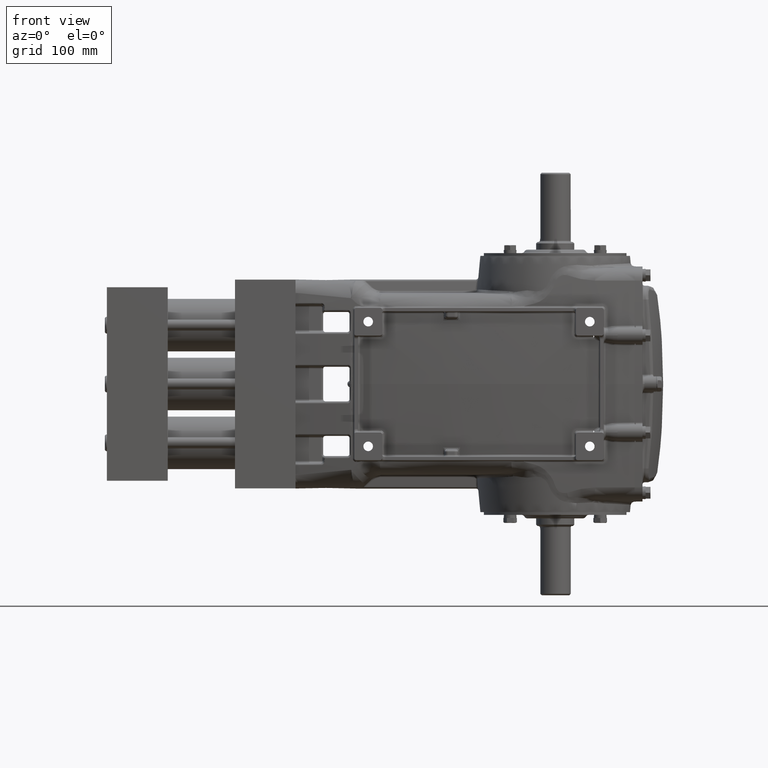
[diagram: clean part render]
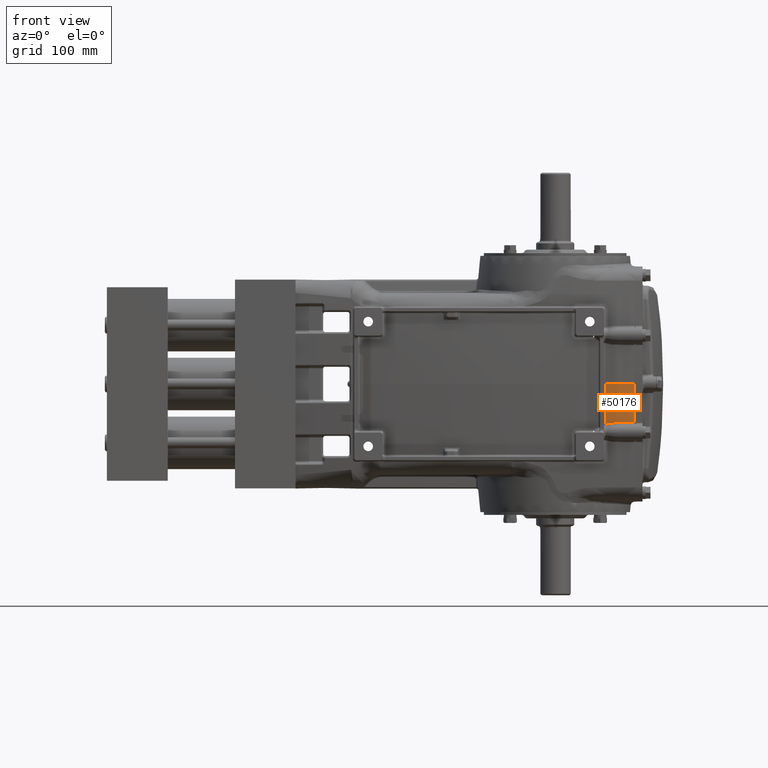
[diagram: same view with one face highlighted and labeled with its STEP entity id]
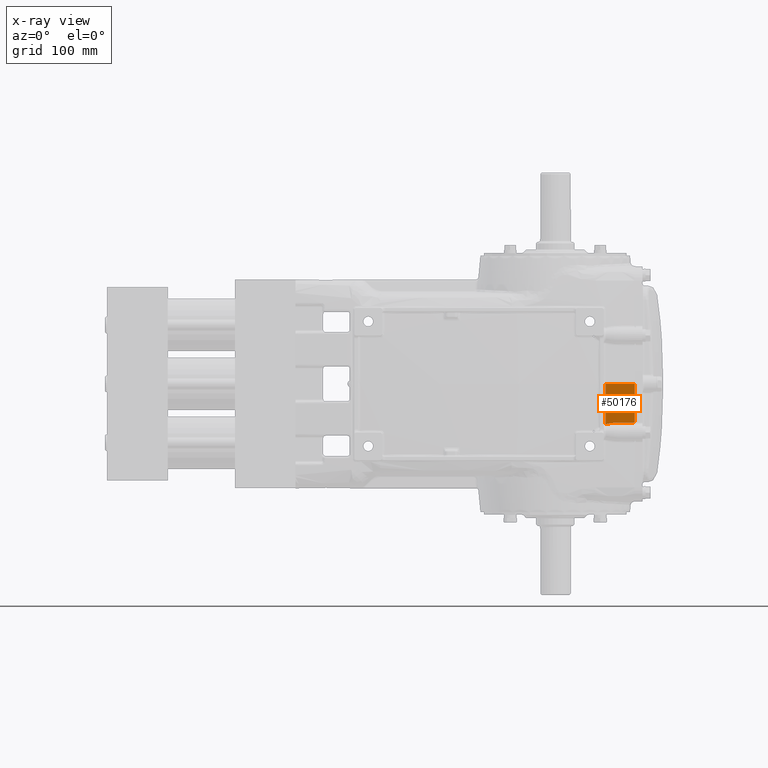
[diagram: x-ray of the same camera — body ghosted, the highlighted face saturated]
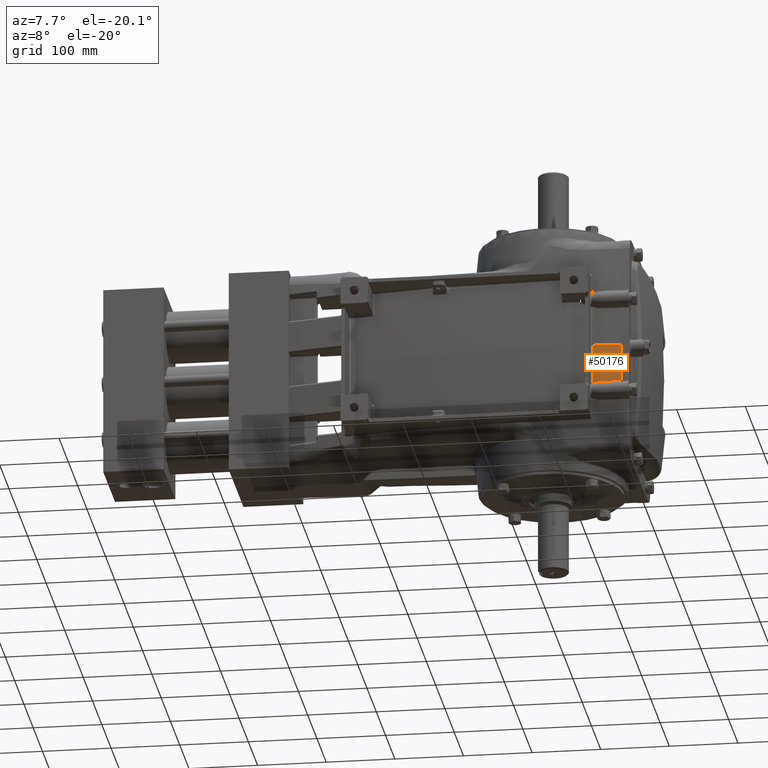
[diagram: same view with one face highlighted and labeled with its STEP entity id]
A machine part, front view. The second image highlights one B-rep face of the part: STEP entity #50176.
The next image is the same camera in x-ray: the body ghosted, the highlighted face saturated — about 0% of this face is hidden behind the body in this view.
A second angle (auxiliary view) of the same face is appended — the face is thin or edge-on in the first view.
In plain terms, the highlighted face is a freeform B-spline surface patch.
Its self-contained STEP definition (entity closure, byte-faithful):
#284 = CARTESIAN_POINT ( 'NONE',  ( -2.285265959175708961, -12.38061854647190074, -5.952186459334057860E-15 ) ) ;
#2207 = CARTESIAN_POINT ( 'NONE',  ( -21.64131179470609112, -10.09287612683603008, -10.04577710926004208 ) ) ;
#2479 = CARTESIAN_POINT ( 'NONE',  ( -2.349973212028928504, -12.34966437480546908, -2.184664243010236984 ) ) ;
#3240 = CARTESIAN_POINT ( 'NONE',  ( -3.337673267315954817, -12.38437238862432821, -2.195805740867309730 ) ) ;
#3458 = CARTESIAN_POINT ( 'NONE',  ( -2.220558706322492970, -11.83250516395756158, -8.780860917755495265 ) ) ;
#3766 = CARTESIAN_POINT ( 'NONE',  ( -21.64131179470613020, -10.35318565719905237, -8.030208900442749709 ) ) ;
#4071 = CARTESIAN_POINT ( 'NONE',  ( -2.349973212028926728, -12.33450132958514445, -2.708941850718743272 ) ) ;
#4381 = CARTESIAN_POINT ( 'NONE',  ( -2.155851453469257439, -12.16987518197086438, -5.413753015067796603 ) ) ;
#4577 = CARTESIAN_POINT ( 'NONE',  ( -3.008363892202449374, -12.37485469306717789, -2.192423589991714383 ) ) ;
#4686 = CARTESIAN_POINT ( 'NONE',  ( -21.64131179470604849, -10.53882562471727802, -6.188065023527709485 ) ) ;
#4991 = CARTESIAN_POINT ( 'NONE',  ( -8.820698497350520029, -12.65374285541260768, -7.613123643899153952E-16 ) ) ;
#5300 = CARTESIAN_POINT ( 'NONE',  ( -8.820698497350520029, -12.65374285541260768, -0.2726334060063855813 ) ) ;
#5615 = CARTESIAN_POINT ( 'NONE',  ( -21.64131179470608757, -10.79570752683036616, -1.371080488539591968 ) ) ;
#6235 = CARTESIAN_POINT ( 'NONE',  ( -21.64131179470609112, -10.80851959794422434, 1.301789904605454270E-14 ) ) ;
#6586 = CARTESIAN_POINT ( 'NONE',  ( -4.005964207208683625, -12.43508292766516199, -8.936424589452269154E-16 ) ) ;
#6926 = CARTESIAN_POINT ( 'NONE',  ( -2.220558706322492970, -11.66227087428507758, -10.04577710926009182 ) ) ;
#6979 = CARTESIAN_POINT ( 'NONE',  ( -3.951851032718774359, -12.39754307426869140, -2.271869855651210912 ) ) ;
#7868 = FACE_OUTER_BOUND ( 'NONE', #46833, .T. ) ;
#8177 = CARTESIAN_POINT ( 'NONE',  ( -8.820698497350505818, -12.44872553631750378, -5.408835557366600710 ) ) ;
#8477 = CARTESIAN_POINT ( 'NONE',  ( -15.30011397790424610, -11.80087968312467339, -6.778283963192261119 ) ) ;
#8788 = CARTESIAN_POINT ( 'NONE',  ( -15.30011397790436867, -12.07296425224308933, -2.784098044332857125 ) ) ;
#9027 = CARTESIAN_POINT ( 'NONE',  ( -2.349973212028928504, -12.34966437480546908, -2.184664243010236984 ) ) ;
#9094 = CARTESIAN_POINT ( 'NONE',  ( -8.820698497350555556, -12.62774570692185350, -1.964061495921458844 ) ) ;
#9406 = CARTESIAN_POINT ( 'NONE',  ( -2.285265959175712069, -12.05147202689562214, -6.832793557027403430 ) ) ;
#9501 = EDGE_CURVE ( 'NONE', #58117, #23316, #19286, .T. ) ;
#9719 = CARTESIAN_POINT ( 'NONE',  ( -21.64131179470609112, -10.80851959794422434, -0.2938242304873521227 ) ) ;
#10032 = CARTESIAN_POINT ( 'NONE',  ( -2.349973212028929392, -12.38070455672580295, -0.7399819118763637515 ) ) ;
#11660 = CARTESIAN_POINT ( 'NONE',  ( -2.349973212028919622, -11.76170427371835103, -9.373807410501107995 ) ) ;
#11980 = CARTESIAN_POINT ( 'NONE',  ( -15.30011397790430827, -11.58720634730572385, -8.718250130616125304 ) ) ;
#12911 = VERTEX_POINT ( 'NONE', #57327 ) ;
#12927 = CARTESIAN_POINT ( 'NONE',  ( -2.349973212028925396, -11.83799083888007253, -8.780241008971938044 ) ) ;
#13240 = CARTESIAN_POINT ( 'NONE',  ( -2.285265959175698303, -12.10602419920496331, -6.244704339401563331 ) ) ;
#13543 = CARTESIAN_POINT ( 'NONE',  ( -21.64131179470622612, -10.75516021611798045, -2.821676141139911831 ) ) ;
#13581 = CARTESIAN_POINT ( 'NONE',  ( -2.349973212028924507, -12.38332274755052431, 1.166750935531556276E-15 ) ) ;
#13858 = CARTESIAN_POINT ( 'NONE',  ( -21.64131179470617283, -10.78040520161481020, -2.041502525274107249 ) ) ;
#14163 = CARTESIAN_POINT ( 'NONE',  ( -2.220558706322504516, -11.97561225462063383, -7.550589100857566294 ) ) ;
#14479 = CARTESIAN_POINT ( 'NONE',  ( -15.30011397790422656, -12.12175287456358141, -0.7899466544984574679 ) ) ;
#15102 = CARTESIAN_POINT ( 'NONE',  ( -2.220558706322502740, -12.36693901115850025, -1.271245932491347874 ) ) ;
#15699 = CARTESIAN_POINT ( 'NONE',  ( -2.285265959175713846, -12.37800255521748838, -0.7397320881632531986 ) ) ;
#16399 = CARTESIAN_POINT ( 'NONE',  ( -15.30011397790427985, -11.44497907845690854, -9.795701932413749091 ) ) ;
#16706 = CARTESIAN_POINT ( 'NONE',  ( -2.155851453469272538, -11.75350330850286085, -9.374461174855936108 ) ) ;
#17081 = CARTESIAN_POINT ( 'NONE',  ( -3.897187919590023863, -12.39676194544369459, -2.259102275936851534 ) ) ;
#17295 = CARTESIAN_POINT ( 'NONE',  ( -2.901937371868590354, -12.40639005470053391, -1.067225044464336913E-15 ) ) ;
#17307 = CARTESIAN_POINT ( 'NONE',  ( -4.005962587045580392, -12.39819578663320243, -2.286396843509931109 ) ) ;
#17391 = CARTESIAN_POINT ( 'NONE',  ( -3.730927178787053933, -12.39390560667744268, -2.227679473177847758 ) ) ;
#17642 = CARTESIAN_POINT ( 'NONE',  ( -15.30011397790424610, -11.85348897497957488, -6.206882071990785121 ) ) ;
#17955 = CARTESIAN_POINT ( 'NONE',  ( -21.64131179470607691, -10.71059178432975934, -3.755218300529151954 ) ) ;
#18249 = CARTESIAN_POINT ( 'NONE',  ( -2.220558706322488085, -12.22796720010126847, -4.639408238164851817 ) ) ;
#18561 = CARTESIAN_POINT ( 'NONE',  ( -2.155851453469277867, -12.32643410598789124, -2.707814507814531257 ) ) ;
#18562 = ORIENTED_EDGE ( 'NONE', *, *, #23848, .T. ) ;
#18866 = CARTESIAN_POINT ( 'NONE',  ( -8.820698497350521805, -12.25508370766496924, -7.516246092718290583 ) ) ;
#19286 = B_SPLINE_CURVE_WITH_KNOTS ( 'NONE', 3,
 ( #23255, #42871, #62465, #9027 ),
 .UNSPECIFIED., .F., .F.,
 ( 4, 4 ),
 ( 0.000000000000000000, 0.3324189983859203168 ),
 .UNSPECIFIED. ) ;
#20438 = CARTESIAN_POINT ( 'NONE',  ( -2.155851453469277423, -12.37521014431466071, -6.054976045372554899E-15 ) ) ;
#21453 = CARTESIAN_POINT ( 'NONE',  ( -2.155851453469275647, -11.69279052384617046, -9.813772193046863990 ) ) ;
#22703 = CARTESIAN_POINT ( 'NONE',  ( -2.155851453469285861, -11.90757485922393144, -8.136978063775567094 ) ) ;
#23017 = CARTESIAN_POINT ( 'NONE',  ( -15.30011397790427097, -11.92010205185752270, -5.404061326588741387 ) ) ;
#23255 = CARTESIAN_POINT ( 'NONE',  ( -2.349973212028924507, -12.38332274755052431, 1.166750935531556276E-15 ) ) ;
#23316 = VERTEX_POINT ( 'NONE', #2479 ) ;
#23325 = CARTESIAN_POINT ( 'NONE',  ( -21.64131179470606980, -10.65642422315710647, -4.668920579875790011 ) ) ;
#23634 = CARTESIAN_POINT ( 'NONE',  ( -15.30011397790431005, -11.66541718908487546, -8.065446248077345004 ) ) ;
#23837 = CARTESIAN_POINT ( 'NONE',  ( -2.349973212028928504, -12.34966437480546908, -2.184664243010236984 ) ) ;
#23848 = EDGE_CURVE ( 'NONE', #12911, #48196, #32126, .T. ) ;
#23945 = CARTESIAN_POINT ( 'NONE',  ( -8.820698497350505818, -12.32721692065445218, -6.805403164105268132 ) ) ;
#24259 = CARTESIAN_POINT ( 'NONE',  ( -15.30011397790427985, -12.12481097944904285, -0.2832288182468694071 ) ) ;
#24577 = CARTESIAN_POINT ( 'NONE',  ( -8.820698497350496936, -12.65090470755751717, -0.7649642831874112758 ) ) ;
#24592 = ORIENTED_EDGE ( 'NONE', *, *, #9501, .F. ) ;
#24882 = CARTESIAN_POINT ( 'NONE',  ( -2.349973212028924507, -12.38332274755052431, -5.900791666314808552E-15 ) ) ;
#25515 = CARTESIAN_POINT ( 'NONE',  ( -8.820698497350525358, -12.64214716633787461, -1.304964888507643472 ) ) ;
#25895 = CARTESIAN_POINT ( 'NONE',  ( -2.285265959175707184, -11.69822442077657776, -9.813594160922399112 ) ) ;
#26213 = CARTESIAN_POINT ( 'NONE',  ( -2.220558706322488085, -11.75623696357469150, -9.374243253404326737 ) ) ;
#27472 = CARTESIAN_POINT ( 'NONE',  ( -2.349973212028914293, -12.10874468059600773, -6.244516168916932841 ) ) ;
#27773 = CARTESIAN_POINT ( 'NONE',  ( -8.820698497350509371, -12.50307014916529447, -4.649375982716229316 ) ) ;
#28046 = CARTESIAN_POINT ( 'NONE',  ( -2.349973212028924507, -12.38332274755052431, 1.166750935531556276E-15 ) ) ;
#28086 = CARTESIAN_POINT ( 'NONE',  ( -2.285265959175718731, -11.91306445837355277, -8.136273316822876467 ) ) ;
#28287 = CARTESIAN_POINT ( 'NONE',  ( -2.679125372157797447, -12.36328611846064263, -2.188573379299494803 ) ) ;
#28396 = CARTESIAN_POINT ( 'NONE',  ( -2.220558706322482756, -12.10330371781391712, -6.244892509886193821 ) ) ;
#28699 = CARTESIAN_POINT ( 'NONE',  ( -15.30011397790426209, -12.02828449493803653, -3.729488559111926893 ) ) ;
#29017 = CARTESIAN_POINT ( 'NONE',  ( -2.285265959175709405, -12.38061854647190074, -0.2619320396434957066 ) ) ;
#29324 = CARTESIAN_POINT ( 'NONE',  ( -2.220558706322497855, -12.37530055370917026, -0.7394822644501427567 ) ) ;
#30245 = CARTESIAN_POINT ( 'NONE',  ( -2.220558706322493414, -12.37791434539328073, -0.2618260855210908233 ) ) ;
#30627 = CARTESIAN_POINT ( 'NONE',  ( -2.285265959175708961, -11.66497507536369937, -10.04577710926009182 ) ) ;
#30941 = CARTESIAN_POINT ( 'NONE',  ( -2.285265959175703632, -11.75897061864652215, -9.374025331952717366 ) ) ;
#31886 = CARTESIAN_POINT ( 'NONE',  ( -8.820698497350520029, -11.97263621576217041, -9.804603538636959215 ) ) ;
#31942 = CARTESIAN_POINT ( 'NONE',  ( -3.563152866515588713, -12.39043211632528951, -2.205039322484263931 ) ) ;
#32126 = B_SPLINE_CURVE_WITH_KNOTS ( 'NONE', 3,
 ( #32253, #6979, #17081, #61036, #17391, #31942, #46187, #36057 ),
 .UNSPECIFIED., .F., .F.,
 ( 4, 2, 2, 4 ),
 ( 0.06403053087505185259, 0.06828669695013805940, 0.07254286302522428009, 0.08105519517539670760 ),
 .UNSPECIFIED. ) ;
#32200 = CARTESIAN_POINT ( 'NONE',  ( -8.820698497350539569, -12.19028921542944666, -8.100683595711938523 ) ) ;
#32253 = CARTESIAN_POINT ( 'NONE',  ( -4.005962587045580392, -12.39819578663320243, -2.286396843509931109 ) ) ;
#32513 = CARTESIAN_POINT ( 'NONE',  ( -2.349973212028893865, -12.28959892124643360, -3.678029076277474552 ) ) ;
#32817 = CARTESIAN_POINT ( 'NONE',  ( -2.220558706322462328, -12.28421854567126026, -3.677514481449129846 ) ) ;
#33137 = CARTESIAN_POINT ( 'NONE',  ( -15.30011397790433669, -12.09775520703895602, -2.002782010597783824 ) ) ;
#33445 = CARTESIAN_POINT ( 'NONE',  ( -2.349973212028934721, -11.91580925794836610, -8.135920943346530265 ) ) ;
#33756 = CARTESIAN_POINT ( 'NONE',  ( -2.155851453469282308, -12.37259855220085214, -0.7392324407370322037 ) ) ;
#34376 = CARTESIAN_POINT ( 'NONE',  ( -2.220558706322503184, -12.35299699330023948, -1.924566570951606215 ) ) ;
#35633 = EDGE_CURVE ( 'NONE', #59258, #12911, #44405, .T. ) ;
#35685 = CARTESIAN_POINT ( 'NONE',  ( -15.30011397790424788, -11.50908330425855830, -9.330223120179205409 ) ) ;
#36003 = CARTESIAN_POINT ( 'NONE',  ( -21.64131179470613020, -10.27477860406447085, -8.687254691438219822 ) ) ;
#36057 = CARTESIAN_POINT ( 'NONE',  ( -3.337673267315954817, -12.38437238862432821, -2.195805740867309730 ) ) ;
#36115 = EDGE_CURVE ( 'NONE', #48196, #23316, #41250, .T. ) ;
#36632 = CARTESIAN_POINT ( 'NONE',  ( -21.64131179470609467, -10.12996243561039300, -9.786800326190538968 ) ) ;
#36947 = CARTESIAN_POINT ( 'NONE',  ( -21.64131179470604138, -10.48718294005363916, -6.751164762279253218 ) ) ;
#37213 = CARTESIAN_POINT ( 'NONE',  ( -3.453964764938317611, -12.42364096687400199, -9.761888856022270607E-16 ) ) ;
#37254 = CARTESIAN_POINT ( 'NONE',  ( -8.820698497350495160, -12.55861770000506183, -3.703758817694700944 ) ) ;
#37564 = CARTESIAN_POINT ( 'NONE',  ( -2.155851453469246781, -12.28152835788367447, -3.677257184034957049 ) ) ;
#37859 = CARTESIAN_POINT ( 'NONE',  ( -15.30011397790427097, -11.72972334447101694, -7.482576476895471451 ) ) ;
#38176 = CARTESIAN_POINT ( 'NONE',  ( -2.349973212028904967, -12.17799703695183311, -5.413609788144460033 ) ) ;
#38530 = CARTESIAN_POINT ( 'NONE',  ( -4.005964207208683625, -12.43508292766516199, -8.936424589452269154E-16 ) ) ;
#39100 = CARTESIAN_POINT ( 'NONE',  ( -2.155851453469287193, -12.35030337846081316, -1.924179365804842945 ) ) ;
#39722 = CARTESIAN_POINT ( 'NONE',  ( -2.349973212028924952, -12.38332274755052431, -0.2620379937659005343 ) ) ;
#40709 = CARTESIAN_POINT ( 'NONE',  ( -4.005963430244044332, -12.42278052818068979, -1.524516704436730929 ) ) ;
#40736 = CARTESIAN_POINT ( 'NONE',  ( -21.64131179470604849, -10.19573732207458328, -9.308430975018255893 ) ) ;
#41250 = B_SPLINE_CURVE_WITH_KNOTS ( 'NONE', 3,
 ( #62431, #4577, #28287, #23837 ),
 .UNSPECIFIED., .F., .F.,
 ( 4, 4 ),
 ( 0.000000000000000000, 0.02510467332354146541 ),
 .UNSPECIFIED. ) ;
#42004 = CARTESIAN_POINT ( 'NONE',  ( -8.820698497350498712, -12.38079281970061984, -6.225699120453859869 ) ) ;
#42318 = CARTESIAN_POINT ( 'NONE',  ( -2.155851453469272538, -12.22527011236534378, -4.639310515179054129 ) ) ;
#42629 = CARTESIAN_POINT ( 'NONE',  ( -2.285265959175703632, -12.23066428783718962, -4.639505961150648616 ) ) ;
#42871 = CARTESIAN_POINT ( 'NONE',  ( -2.349973212028924507, -12.38332229208753432, -0.7287620930716716128 ) ) ;
#42937 = CARTESIAN_POINT ( 'NONE',  ( -15.30011397790426209, -11.97342693893182819, -4.659148281296010552 ) ) ;
#43248 = CARTESIAN_POINT ( 'NONE',  ( -2.220558706322496079, -12.04874187943266328, -6.833064749036533492 ) ) ;
#43561 = CARTESIAN_POINT ( 'NONE',  ( -2.155851453469287193, -12.36424089199007348, -1.270915354491187976 ) ) ;
#43868 = CARTESIAN_POINT ( 'NONE',  ( -2.285265959175719619, -12.35569060813966757, -1.924953776098369485 ) ) ;
#44187 = CARTESIAN_POINT ( 'NONE',  ( -2.155851453469277867, -12.37521014431466071, -0.2617201313986859956 ) ) ;
#44405 = B_SPLINE_CURVE_WITH_KNOTS ( 'NONE', 3,
 ( #6586, #45475, #40709, #17307 ),
 .UNSPECIFIED., .F., .F.,
 ( 4, 4 ),
 ( 9.312783214825911758E-17, 0.05808540592679201781 ),
 .UNSPECIFIED. ) ;
#45194 = CARTESIAN_POINT ( 'NONE',  ( -2.349973212028924507, -11.66767927644232117, -10.04577710926009182 ) ) ;
#45475 = CARTESIAN_POINT ( 'NONE',  ( -4.005964207208684513, -12.43508292766516199, -0.7622767278752565767 ) ) ;
#46187 = CARTESIAN_POINT ( 'NONE',  ( -3.450706698500326741, -12.38763927947862697, -2.196966643493058591 ) ) ;
#46452 = CARTESIAN_POINT ( 'NONE',  ( -2.349973212028922731, -11.70094136924178230, -9.813505144860167562 ) ) ;
#46723 = CARTESIAN_POINT ( 'NONE',  ( -4.005964207208683625, -12.43508292766516199, -8.936424589452269154E-16 ) ) ;
#46766 = CARTESIAN_POINT ( 'NONE',  ( -2.285265959175688977, -12.17528975195817686, -5.413657530452238298 ) ) ;
#46833 = EDGE_LOOP ( 'NONE', ( #58076, #50559, #18562, #53682, #24592 ) ) ;
#47065 = CARTESIAN_POINT ( 'NONE',  ( -21.64131179470607336, -10.41700347573581453, -7.448906861072648766 ) ) ;
#47378 = CARTESIAN_POINT ( 'NONE',  ( -8.820698497350566214, -12.60340878282694277, -2.746519947525800642 ) ) ;
#47686 = CARTESIAN_POINT ( 'NONE',  ( -2.155851453469266765, -12.10058323642286915, -6.245080680370824311 ) ) ;
#47989 = CARTESIAN_POINT ( 'NONE',  ( -2.349973212028936054, -11.98109208703326800, -7.549915708541110604 ) ) ;
#48196 = VERTEX_POINT ( 'NONE', #3240 ) ;
#48309 = CARTESIAN_POINT ( 'NONE',  ( -2.285265959175718731, -12.36963713032692347, -1.271576510491507550 ) ) ;
#48626 = CARTESIAN_POINT ( 'NONE',  ( -15.30011397790427985, -12.12481097944904285, 5.544917873066535615E-15 ) ) ;
#48733 = B_SPLINE_CURVE_WITH_KNOTS ( 'NONE', 3,
 ( #46723, #37213, #17295, #28046 ),
 .UNSPECIFIED., .F., .F.,
 ( 4, 4 ),
 ( 0.9146982547548789810, 1.000000000000000000 ),
 .UNSPECIFIED. ) ;
#49526 = B_SPLINE_SURFACE_WITH_KNOTS ( 'NONE', 3, 3, ( 
 ( #2207, #50245, #59733, #45194, #30627, #6926, #49930 ),
 ( #36632, #16399, #31886, #46452, #25895, #60044, #21453 ),
 ( #40736, #35685, #54987, #11660, #30941, #26213, #16706 ),
 ( #36003, #11980, #51502, #12927, #52116, #3458, #52427 ),
 ( #3766, #23634, #32200, #33445, #28086, #52732, #22703 ),
 ( #47065, #37859, #18866, #47989, #61296, #14163, #56873 ),
 ( #36947, #8477, #23945, #56556, #9406, #43248, #51809 ),
 ( #4686, #17642, #42004, #27472, #13240, #28396, #47686 ),
 ( #56252, #23017, #8177, #38176, #46766, #57476, #4381 ),
 ( #23325, #42937, #27773, #57169, #42629, #18249, #42318 ),
 ( #17955, #28699, #37254, #32513, #61600, #32817, #37564 ),
 ( #13543, #8788, #47378, #4071, #61915, #62220, #18561 ),
 ( #13858, #33137, #9094, #57798, #43868, #34376, #39100 ),
 ( #5615, #53042, #25515, #62531, #48309, #15102, #43561 ),
 ( #54286, #14479, #24577, #10032, #15699, #29324, #33756 ),
 ( #9719, #24259, #5300, #39722, #29017, #30245, #44187 ),
 ( #6235, #48626, #4991, #24882, #284, #58418, #20438 ) ),
 .UNSPECIFIED., .F., .F., .F.,
 ( 4, 1, 1, 1, 1, 1, 1, 1, 1, 1, 1, 1, 1, 1, 4 ),
 ( 4, 3, 4 ),
 ( 0.6416899016319266291, 0.6680709144412995126, 0.6910511929030633826, 0.7070270417424607823, 0.7380269954074184513, 0.7537315596691966935, 0.7829012457735833319, 0.7996549019161131033, 0.8403417066807266078, 0.8632468234832121334, 0.8997714546634835164, 0.9419247260028263957, 0.9467756368356592400, 0.9704551915184829181, 1.000000000000000000 ),
 ( 0.000000000000000000, 1.000000000000000000, 1.010000000000000009 ),
 .UNSPECIFIED. ) ;
#49930 = CARTESIAN_POINT ( 'NONE',  ( -2.155851453469277423, -11.65956667320645757, -10.04577710926009182 ) ) ;
#50176 = ADVANCED_FACE ( 'NONE', ( #7868 ), #49526, .F. ) ;
#50245 = CARTESIAN_POINT ( 'NONE',  ( -15.30011397790427985, -11.40916750834084503, -10.04577710926006162 ) ) ;
#50559 = ORIENTED_EDGE ( 'NONE', *, *, #35633, .T. ) ;
#51502 = CARTESIAN_POINT ( 'NONE',  ( -8.820698497350536016, -12.11227458500572318, -8.749245569794030786 ) ) ;
#51809 = CARTESIAN_POINT ( 'NONE',  ( -2.155851453469280532, -12.04601173196970620, -6.833335941045664441 ) ) ;
#52116 = CARTESIAN_POINT ( 'NONE',  ( -2.285265959175709405, -11.83524800141881528, -8.780550963363717543 ) ) ;
#52427 = CARTESIAN_POINT ( 'NONE',  ( -2.155851453469276535, -11.82976232649630433, -8.781170872147274764 ) ) ;
#52732 = CARTESIAN_POINT ( 'NONE',  ( -2.220558706322502296, -11.91031965879874299, -8.136625690299220892 ) ) ;
#53042 = CARTESIAN_POINT ( 'NONE',  ( -15.30011397790427985, -12.11260709935474900, -1.338022688523618386 ) ) ;
#53682 = ORIENTED_EDGE ( 'NONE', *, *, #36115, .T. ) ;
#54286 = CARTESIAN_POINT ( 'NONE',  ( -21.64131179470601296, -10.80524153602839021, -0.8149290258095023276 ) ) ;
#54987 = CARTESIAN_POINT ( 'NONE',  ( -8.820698497350502265, -12.03506978090127966, -9.352015265340156702 ) ) ;
#56252 = CARTESIAN_POINT ( 'NONE',  ( -21.64131179470608757, -10.60411906185628617, -5.399287095810881176 ) ) ;
#56556 = CARTESIAN_POINT ( 'NONE',  ( -2.349973212028927616, -12.05420217435858277, -6.832522365018273369 ) ) ;
#56873 = CARTESIAN_POINT ( 'NONE',  ( -2.155851453469288526, -11.97287233841431586, -7.550925797015794139 ) ) ;
#57169 = CARTESIAN_POINT ( 'NONE',  ( -2.349973212028919622, -12.23336137557311076, -4.639603684136446304 ) ) ;
#57327 = CARTESIAN_POINT ( 'NONE',  ( -4.005962587045580392, -12.39819578663320243, -2.286396843509931109 ) ) ;
#57476 = CARTESIAN_POINT ( 'NONE',  ( -2.220558706322473430, -12.17258246696452240, -5.413705272760017451 ) ) ;
#57798 = CARTESIAN_POINT ( 'NONE',  ( -2.349973212028936054, -12.35838422297909567, -1.925340981245132754 ) ) ;
#58076 = ORIENTED_EDGE ( 'NONE', *, *, #62332, .F. ) ;
#58117 = VERTEX_POINT ( 'NONE', #13581 ) ;
#58418 = CARTESIAN_POINT ( 'NONE',  ( -2.220558706322492970, -12.37791434539328073, -6.003581252353306379E-15 ) ) ;
#59258 = VERTEX_POINT ( 'NONE', #38530 ) ;
#59733 = CARTESIAN_POINT ( 'NONE',  ( -8.820698497350520029, -11.93809938430440987, -10.04577710926007583 ) ) ;
#60044 = CARTESIAN_POINT ( 'NONE',  ( -2.220558706322491194, -11.69550747231137322, -9.813683176984632439 ) ) ;
#61036 = CARTESIAN_POINT ( 'NONE',  ( -3.786781975002161182, -12.39494456213181373, -2.237011402393540571 ) ) ;
#61296 = CARTESIAN_POINT ( 'NONE',  ( -2.285265959175720063, -11.97835217082695181, -7.550252404699338449 ) ) ;
#61600 = CARTESIAN_POINT ( 'NONE',  ( -2.285265959175678319, -12.28690873345884604, -3.677771778863302199 ) ) ;
#61915 = CARTESIAN_POINT ( 'NONE',  ( -2.285265959175710293, -12.33181225505272494, -2.708566069750672600 ) ) ;
#62220 = CARTESIAN_POINT ( 'NONE',  ( -2.220558706322494302, -12.32912318052030720, -2.708190288782601929 ) ) ;
#62332 = EDGE_CURVE ( 'NONE', #59258, #58117, #48733, .T. ) ;
#62431 = CARTESIAN_POINT ( 'NONE',  ( -3.337673267315954817, -12.38437238862432821, -2.195805740867309730 ) ) ;
#62465 = CARTESIAN_POINT ( 'NONE',  ( -2.349973212028924507, -12.37210730525562319, -1.456983645255871540 ) ) ;
#62531 = CARTESIAN_POINT ( 'NONE',  ( -2.349973212028934277, -12.37233524949535024, -1.271907088491667448 ) ) ;